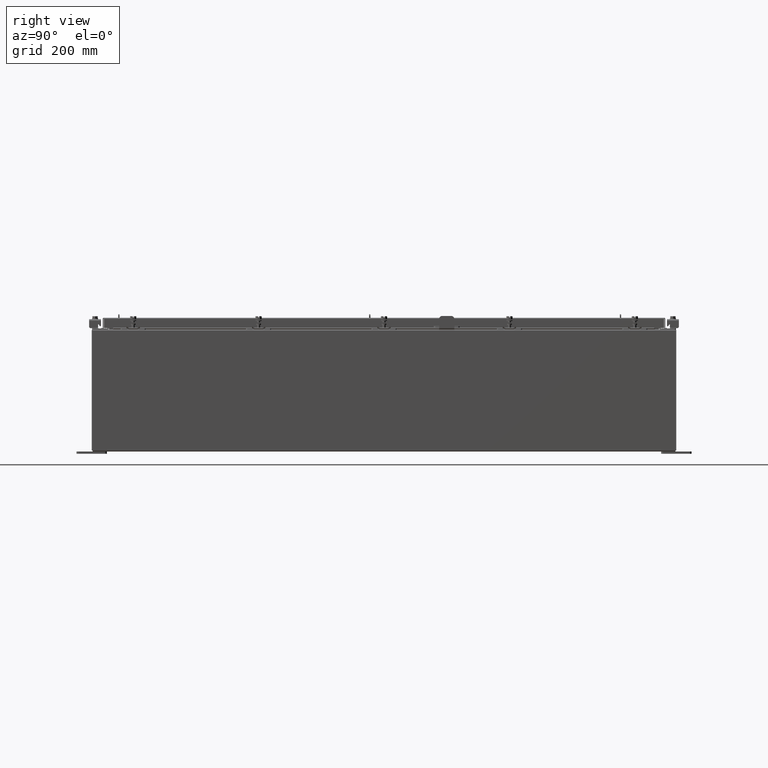
[diagram: clean part render]
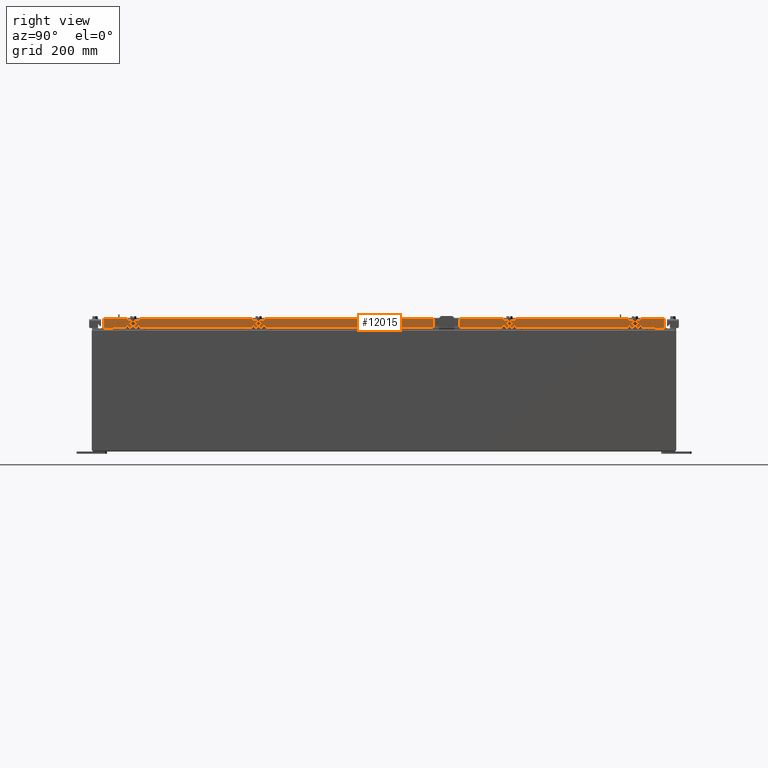
[diagram: same view with one face highlighted and labeled with its STEP entity id]
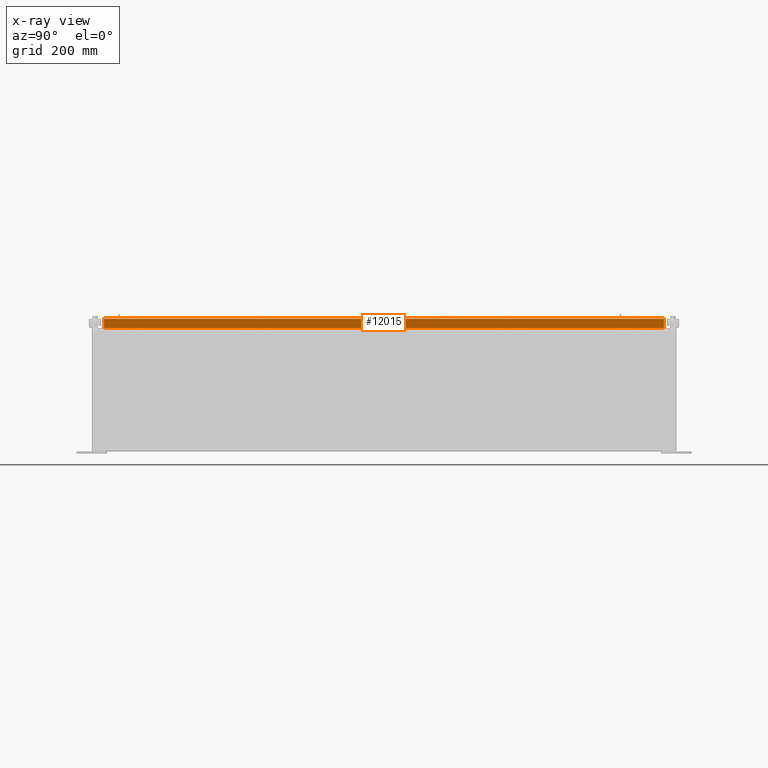
[diagram: x-ray of the same camera — body ghosted, the highlighted face saturated]
A machine part, right view. The second image highlights one B-rep face of the part: STEP entity #12015.
The next image is the same camera in x-ray: the body ghosted, the highlighted face saturated — about 0% of this face is hidden behind the body in this view.
In plain terms, the highlighted planar face has unit normal (1, 0, 0).
Its self-contained STEP definition (entity closure, byte-faithful):
#499 = DIRECTION ( 'NONE',  ( 1.333810383284160400E-031, -1.000000000000000000, -4.731701729738051400E-017 ) ) ;
#788 = EDGE_LOOP ( 'NONE', ( #13816, #11673, #5421, #8177, #10617, #15505 ) ) ;
#1147 = LINE ( 'NONE', #20904, #5232 ) ;
#1818 = FACE_OUTER_BOUND ( 'NONE', #788, .T. ) ;
#2289 = VERTEX_POINT ( 'NONE', #11200 ) ;
#2354 = CARTESIAN_POINT ( 'NONE',  ( 14.07800000000000300, -23.00515786437626900, -0.8499999999999996400 ) ) ;
#3391 = EDGE_CURVE ( 'NONE', #11091, #14827, #20415, .T. ) ;
#3485 = VECTOR ( 'NONE', #6555, 39.37007874015748100 ) ;
#3542 = PLANE ( 'NONE',  #3935 ) ;
#3935 = AXIS2_PLACEMENT_3D ( 'NONE', #17432, #20940, #10532 ) ;
#5232 = VECTOR ( 'NONE', #13835, 39.37007874015748100 ) ;
#5421 = ORIENTED_EDGE ( 'NONE', *, *, #8366, .F. ) ;
#6555 = DIRECTION ( 'NONE',  ( -2.818880942772360100E-015, -6.982962677686265900E-015, 1.000000000000000000 ) ) ;
#7204 = EDGE_CURVE ( 'NONE', #11270, #2289, #8128, .T. ) ;
#7242 = CARTESIAN_POINT ( 'NONE',  ( 14.07799999999999900, 23.00515786437626900, 2.005891783295810500E-013 ) ) ;
#7778 = EDGE_CURVE ( 'NONE', #10564, #11270, #20328, .T. ) ;
#8128 = LINE ( 'NONE', #13445, #3485 ) ;
#8177 = ORIENTED_EDGE ( 'NONE', *, *, #19215, .F. ) ;
#8366 = EDGE_CURVE ( 'NONE', #8574, #10564, #1147, .T. ) ;
#8574 = VERTEX_POINT ( 'NONE', #12690 ) ;
#10532 = DIRECTION ( 'NONE',  ( 2.818880942772360100E-015, 0.0000000000000000000, -1.000000000000000000 ) ) ;
#10564 = VERTEX_POINT ( 'NONE', #17670 ) ;
#10617 = ORIENTED_EDGE ( 'NONE', *, *, #3391, .T. ) ;
#11091 = VERTEX_POINT ( 'NONE', #21046 ) ;
#11200 = CARTESIAN_POINT ( 'NONE',  ( 14.07799999999999900, -23.00515786437627200, -0.08770000000000224800 ) ) ;
#11270 = VERTEX_POINT ( 'NONE', #2354 ) ;
#11334 = DIRECTION ( 'NONE',  ( 0.0000000000000000000, -1.000000000000000000, 0.0000000000000000000 ) ) ;
#11673 = ORIENTED_EDGE ( 'NONE', *, *, #7778, .F. ) ;
#12015 = ADVANCED_FACE ( 'NONE', ( #1818 ), #3542, .T. ) ;
#12690 = CARTESIAN_POINT ( 'NONE',  ( 14.07799999999999100, 22.25515786437627200, -0.8500000000000020900 ) ) ;
#13196 = VECTOR ( 'NONE', #11334, 39.37007874015748100 ) ;
#13445 = CARTESIAN_POINT ( 'NONE',  ( 14.07799999999999900, -23.00515786437627200, -0.07469999999999978000 ) ) ;
#13816 = ORIENTED_EDGE ( 'NONE', *, *, #7204, .F. ) ;
#13835 = DIRECTION ( 'NONE',  ( 0.0000000000000000000, -1.000000000000000000, 0.0000000000000000000 ) ) ;
#14345 = CARTESIAN_POINT ( 'NONE',  ( 14.07799999999999900, 4.149702416982216500E-018, -0.08770000000000115200 ) ) ;
#14789 = LINE ( 'NONE', #14345, #19413 ) ;
#14827 = VERTEX_POINT ( 'NONE', #15099 ) ;
#15099 = CARTESIAN_POINT ( 'NONE',  ( 14.07799999999999900, 23.00515786437626200, -0.08770000000000115200 ) ) ;
#15505 = ORIENTED_EDGE ( 'NONE', *, *, #21688, .T. ) ;
#15684 = VECTOR ( 'NONE', #22365, 39.37007874015748100 ) ;
#16229 = CARTESIAN_POINT ( 'NONE',  ( 14.07800000000000300, -23.09400000000000100, -0.8499999999999996400 ) ) ;
#17432 = CARTESIAN_POINT ( 'NONE',  ( 14.07799999999999900, 0.0000000000000000000, 3.994501956836086200E-014 ) ) ;
#17670 = CARTESIAN_POINT ( 'NONE',  ( 14.07799999999999100, -22.25515786437626200, -0.8500000000000020900 ) ) ;
#17790 = LINE ( 'NONE', #21741, #13196 ) ;
#19215 = EDGE_CURVE ( 'NONE', #11091, #8574, #17790, .T. ) ;
#19371 = DIRECTION ( 'NONE',  ( -2.818880942772360100E-015, -6.982962677686265900E-015, 1.000000000000000000 ) ) ;
#19413 = VECTOR ( 'NONE', #499, 39.37007874015748100 ) ;
#20328 = LINE ( 'NONE', #16229, #15684 ) ;
#20415 = LINE ( 'NONE', #7242, #21495 ) ;
#20904 = CARTESIAN_POINT ( 'NONE',  ( 14.07799999999999100, 22.25515786437627200, -0.8500000000000020900 ) ) ;
#20940 = DIRECTION ( 'NONE',  ( 1.000000000000000000, 0.0000000000000000000, 2.818880942772360100E-015 ) ) ;
#21046 = CARTESIAN_POINT ( 'NONE',  ( 14.07800000000000300, 23.00515786437627200, -0.8499999999999996400 ) ) ;
#21495 = VECTOR ( 'NONE', #19371, 39.37007874015748100 ) ;
#21688 = EDGE_CURVE ( 'NONE', #14827, #2289, #14789, .T. ) ;
#21741 = CARTESIAN_POINT ( 'NONE',  ( 14.07800000000000300, -23.09400000000000100, -0.8499999999999996400 ) ) ;
#22365 = DIRECTION ( 'NONE',  ( 0.0000000000000000000, -1.000000000000000000, 0.0000000000000000000 ) ) ;